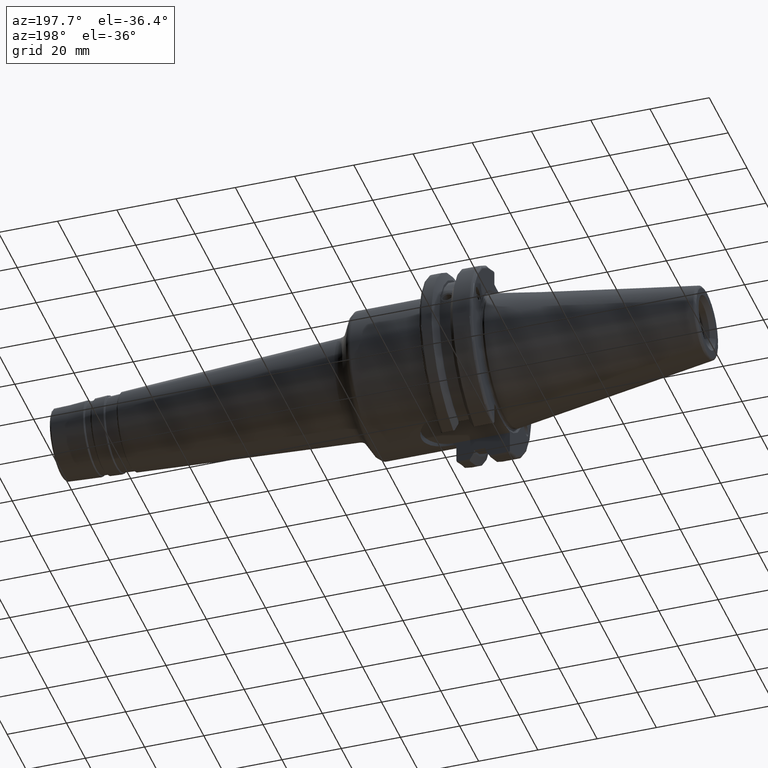
[diagram: clean part render]
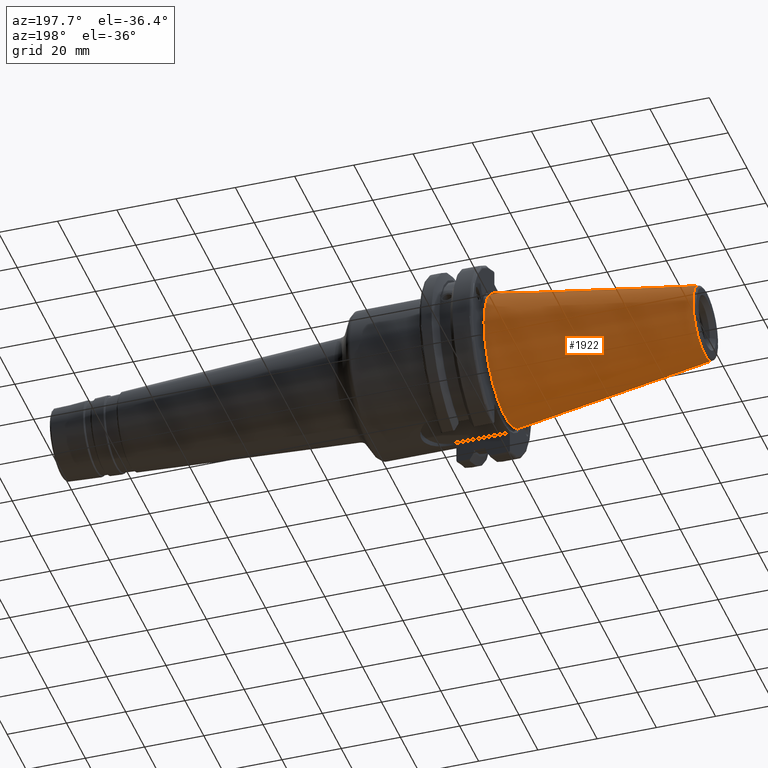
[diagram: same view with one face highlighted and labeled with its STEP entity id]
A machine part, auxiliary view. The second image highlights one B-rep face of the part: STEP entity #1922.
In plain terms, the highlighted conical surface has half-angle 8.297 deg.
Its self-contained STEP definition (entity closure, byte-faithful):
#249=LINE('',#3735,#344);
#344=VECTOR('',#2730,17.2484375);
#375=CONICAL_SURFACE('',#2181,17.2484375,0.144812498238939);
#461=FACE_OUTER_BOUND('',#581,.T.);
#581=EDGE_LOOP('',(#1684,#1685,#1686,#1687,#1688));
#718=CIRCLE('',#2175,12.3966635780937);
#719=CIRCLE('',#2176,12.3966635780937);
#723=CIRCLE('',#2182,22.225);
#918=VERTEX_POINT('',#3722);
#919=VERTEX_POINT('',#3723);
#922=VERTEX_POINT('',#3733);
#1190=EDGE_CURVE('',#918,#919,#718,.T.);
#1191=EDGE_CURVE('',#919,#918,#719,.T.);
#1195=EDGE_CURVE('',#922,#922,#723,.T.);
#1196=EDGE_CURVE('',#922,#919,#249,.T.);
#1684=ORIENTED_EDGE('',*,*,#1195,.F.);
#1685=ORIENTED_EDGE('',*,*,#1196,.T.);
#1686=ORIENTED_EDGE('',*,*,#1190,.F.);
#1687=ORIENTED_EDGE('',*,*,#1191,.F.);
#1688=ORIENTED_EDGE('',*,*,#1196,.F.);
#1922=ADVANCED_FACE('',(#461),#375,.T.);
#2175=AXIS2_PLACEMENT_3D('',#3724,#2714,#2715);
#2176=AXIS2_PLACEMENT_3D('',#3725,#2716,#2717);
#2181=AXIS2_PLACEMENT_3D('',#3732,#2726,#2727);
#2182=AXIS2_PLACEMENT_3D('',#3734,#2728,#2729);
#2714=DIRECTION('center_axis',(-1.,0.,0.));
#2715=DIRECTION('ref_axis',(0.,-1.,3.06161699786838E-17));
#2716=DIRECTION('center_axis',(-1.,0.,0.));
#2717=DIRECTION('ref_axis',(0.,-1.,3.06161699786838E-17));
#2726=DIRECTION('center_axis',(1.,0.,0.));
#2727=DIRECTION('ref_axis',(0.,1.,0.));
#2728=DIRECTION('center_axis',(1.,0.,0.));
#2729=DIRECTION('ref_axis',(0.,0.,-1.));
#2730=DIRECTION('',(-0.989532981063282,0.144306893071729,1.76724974695192E-17));
#3722=CARTESIAN_POINT('',(-67.3943068930717,-1.5181534371019E-15,12.3966635780937));
#3723=CARTESIAN_POINT('',(-67.3943068930718,-12.3966635780937,-1.5181534371019E-15));
#3724=CARTESIAN_POINT('Origin',(-67.3943068930717,0.,-1.89769179637738E-15));
#3725=CARTESIAN_POINT('Origin',(-67.3943068930717,0.,-1.89769179637738E-15));
#3732=CARTESIAN_POINT('Origin',(-34.125,0.,0.));
#3733=CARTESIAN_POINT('',(0.,-22.225,-2.72177751110499E-15));
#3734=CARTESIAN_POINT('Origin',(0.,0.,0.));
#3735=CARTESIAN_POINT('',(-34.125,-17.2484375,-2.11232437746682E-15));